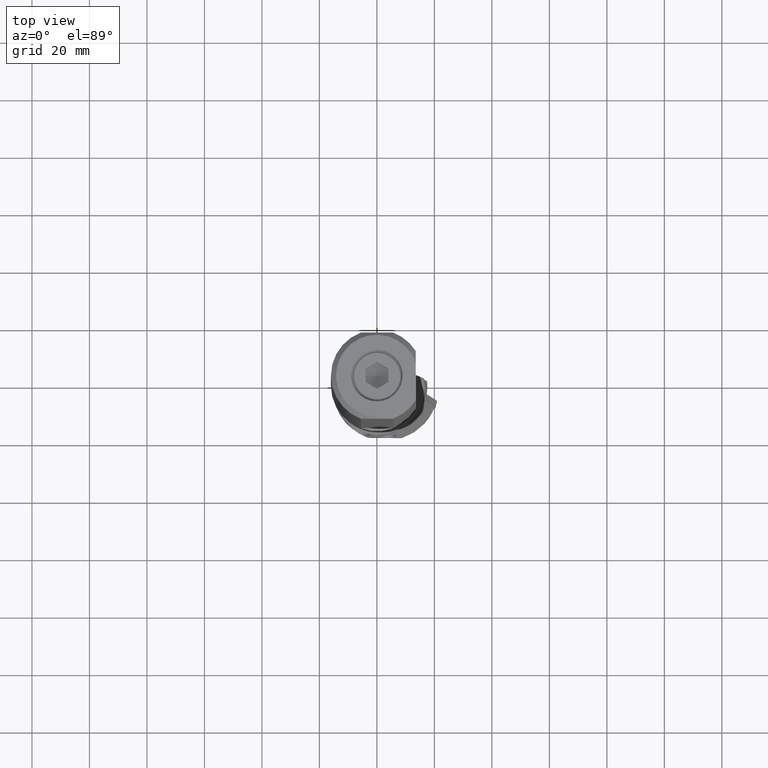
[diagram: clean part render]
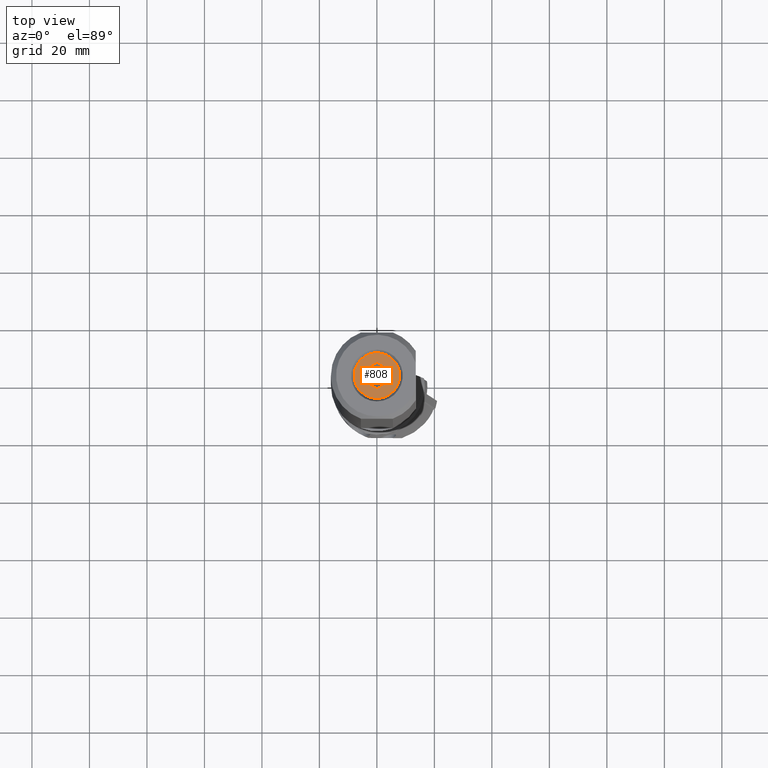
[diagram: same view with one face highlighted and labeled with its STEP entity id]
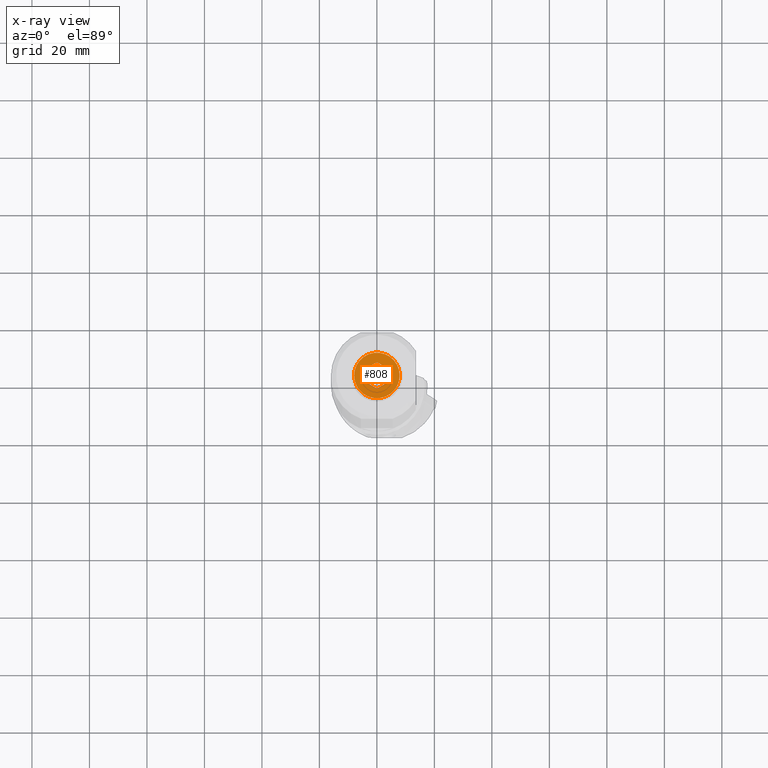
[diagram: x-ray of the same camera — body ghosted, the highlighted face saturated]
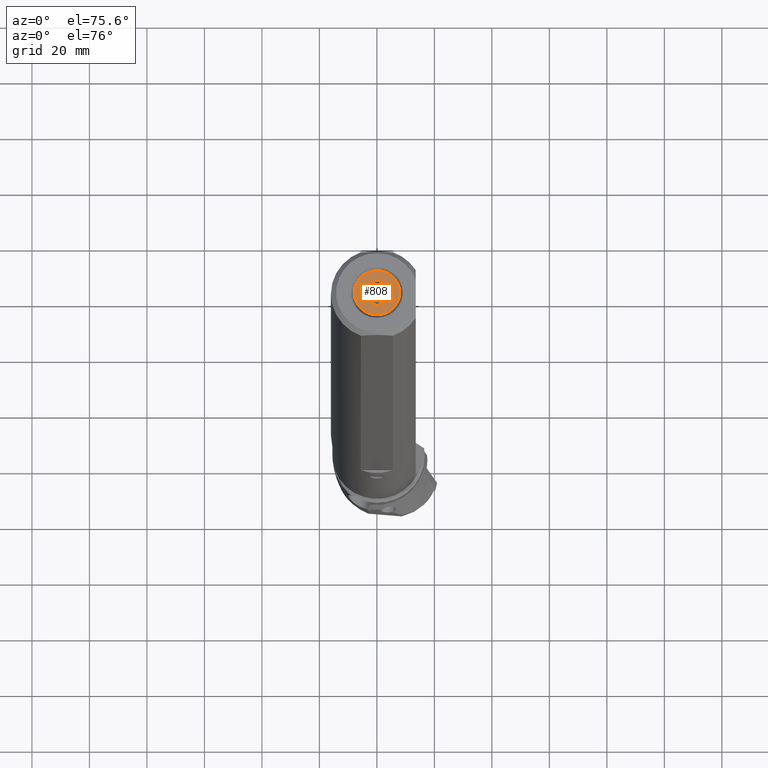
[diagram: same view with one face highlighted and labeled with its STEP entity id]
A machine part, top view. The second image highlights one B-rep face of the part: STEP entity #808.
The next image is the same camera in x-ray: the body ghosted, the highlighted face saturated — about 0% of this face is hidden behind the body in this view.
A second angle (auxiliary view) of the same face is appended — the face is thin or edge-on in the first view.
In plain terms, the highlighted planar face has unit normal (0, 0, 1).
Its self-contained STEP definition (entity closure, byte-faithful):
#89=FACE_BOUND('',#1251,.T.);
#90=FACE_BOUND('',#1252,.T.);
#141=PLANE('',#4030);
#356=LINE('',#6517,#585);
#357=LINE('',#6520,#586);
#358=LINE('',#6522,#587);
#359=LINE('',#6524,#588);
#360=LINE('',#6526,#589);
#361=LINE('',#6528,#590);
#585=VECTOR('',#4769,1.);
#586=VECTOR('',#4770,1.);
#587=VECTOR('',#4771,1.);
#588=VECTOR('',#4772,1.);
#589=VECTOR('',#4773,1.);
#590=VECTOR('',#4774,1.);
#808=ADVANCED_FACE('',(#89,#90),#141,.T.);
#1251=EDGE_LOOP('',(#2124,#2125));
#1252=EDGE_LOOP('',(#2126,#2127,#2128,#2129,#2130,#2131));
#1436=CIRCLE('',#4026,7.924875);
#1437=CIRCLE('',#4028,7.924875);
#2124=ORIENTED_EDGE('',*,*,#3289,.F.);
#2125=ORIENTED_EDGE('',*,*,#3286,.F.);
#2126=ORIENTED_EDGE('',*,*,#3290,.T.);
#2127=ORIENTED_EDGE('',*,*,#3291,.F.);
#2128=ORIENTED_EDGE('',*,*,#3292,.F.);
#2129=ORIENTED_EDGE('',*,*,#3293,.T.);
#2130=ORIENTED_EDGE('',*,*,#3294,.F.);
#2131=ORIENTED_EDGE('',*,*,#3295,.F.);
#2839=VERTEX_POINT('',#6510);
#2840=VERTEX_POINT('',#6511);
#2841=VERTEX_POINT('',#6518);
#2842=VERTEX_POINT('',#6519);
#2843=VERTEX_POINT('',#6521);
#2844=VERTEX_POINT('',#6523);
#2845=VERTEX_POINT('',#6525);
#2846=VERTEX_POINT('',#6527);
#3286=EDGE_CURVE('',#2839,#2840,#1436,.T.);
#3289=EDGE_CURVE('',#2840,#2839,#1437,.T.);
#3290=EDGE_CURVE('',#2841,#2842,#356,.T.);
#3291=EDGE_CURVE('',#2843,#2842,#357,.T.);
#3292=EDGE_CURVE('',#2844,#2843,#358,.T.);
#3293=EDGE_CURVE('',#2844,#2845,#359,.T.);
#3294=EDGE_CURVE('',#2846,#2845,#360,.T.);
#3295=EDGE_CURVE('',#2841,#2846,#361,.T.);
#4026=AXIS2_PLACEMENT_3D('',#6509,#4759,#4760);
#4028=AXIS2_PLACEMENT_3D('',#6515,#4765,#4766);
#4030=AXIS2_PLACEMENT_3D('',#6529,#4775,#4776);
#4759=DIRECTION('',(0.,0.,-1.));
#4760=DIRECTION('',(1.,0.,0.));
#4765=DIRECTION('',(0.,0.,-1.));
#4766=DIRECTION('',(-1.,0.,0.));
#4769=DIRECTION('',(0.,1.,0.));
#4770=DIRECTION('',(-0.866025403784497,-0.499999999999898,0.));
#4771=DIRECTION('',(-0.866025403784497,0.499999999999898,0.));
#4772=DIRECTION('',(0.,-1.,0.));
#4773=DIRECTION('',(0.866025403784497,0.499999999999898,0.));
#4774=DIRECTION('',(0.866025403784497,-0.499999999999898,0.));
#4775=DIRECTION('',(0.,0.,1.));
#4776=DIRECTION('',(1.,0.,0.));
#6509=CARTESIAN_POINT('',(0.,0.,4.707345624411E-14));
#6510=CARTESIAN_POINT('',(7.924875,0.,1.182387521226E-14));
#6511=CARTESIAN_POINT('',(-7.924875,0.,2.723747153747E-14));
#6515=CARTESIAN_POINT('',(0.,0.,4.618527782441E-14));
#6517=CARTESIAN_POINT('',(-4.,-2.309401076759,0.));
#6518=CARTESIAN_POINT('',(-4.,-2.309401076759,0.));
#6519=CARTESIAN_POINT('',(-4.,2.309401076759,0.));
#6520=CARTESIAN_POINT('',(0.,4.618802153517,0.));
#6521=CARTESIAN_POINT('',(0.,4.618802153517,0.));
#6522=CARTESIAN_POINT('',(4.,2.309401076759,0.));
#6523=CARTESIAN_POINT('',(4.,2.309401076759,0.));
#6524=CARTESIAN_POINT('',(4.,2.309401076759,0.));
#6525=CARTESIAN_POINT('',(4.,-2.309401076759,0.));
#6526=CARTESIAN_POINT('',(0.,-4.618802153517,0.));
#6527=CARTESIAN_POINT('',(0.,-4.618802153517,0.));
#6528=CARTESIAN_POINT('',(-4.,-2.309401076759,0.));
#6529=CARTESIAN_POINT('',(0.,0.,0.));